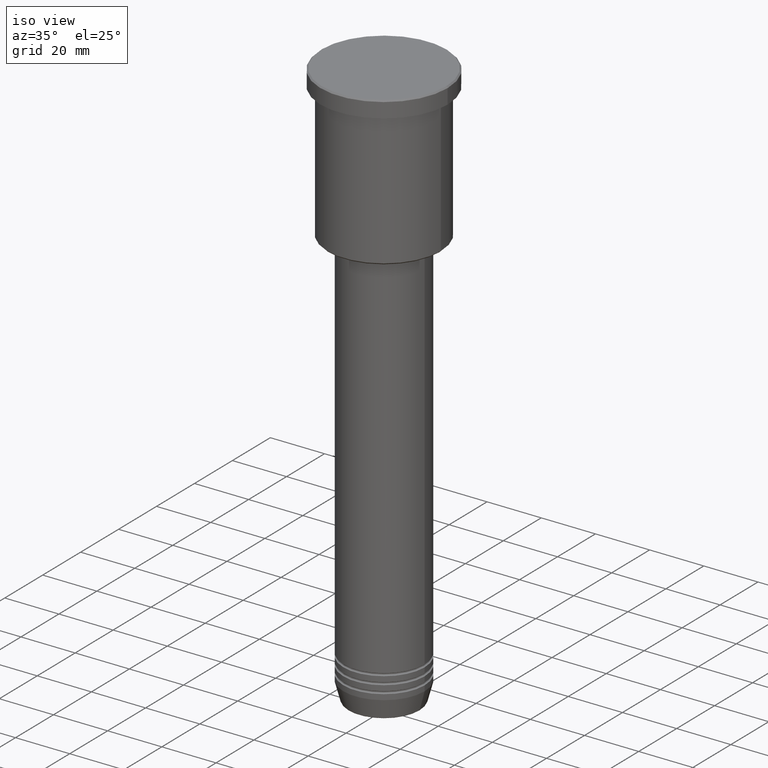
[diagram: clean part render]
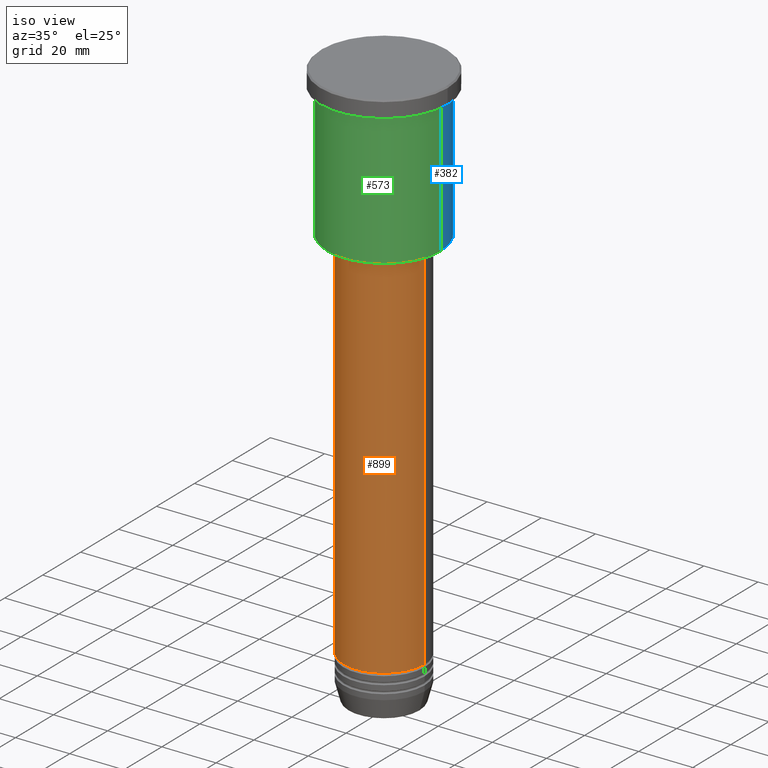
[diagram: same view with three faces highlighted in distinct colors, each labeled with its STEP entity id]
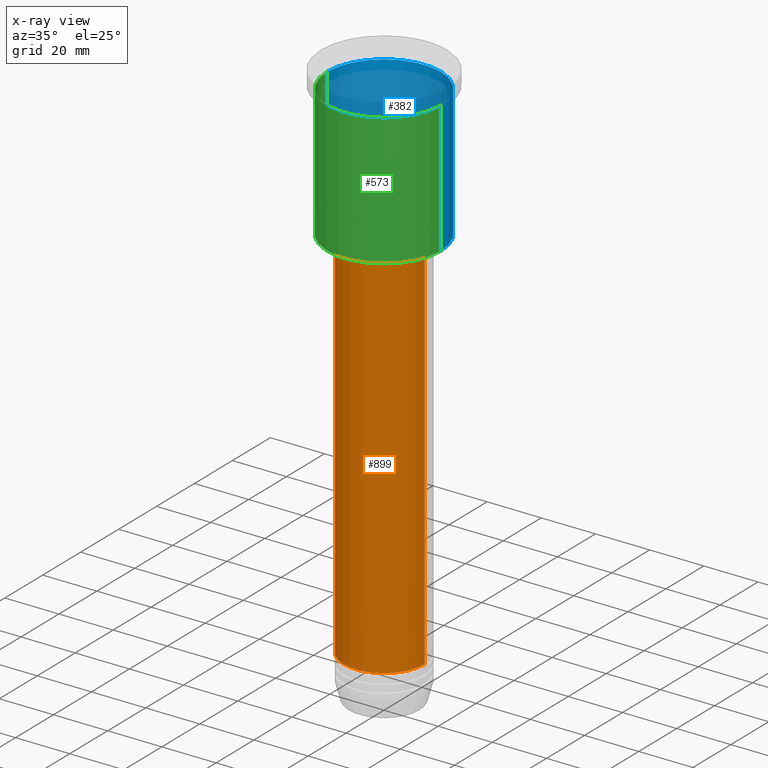
[diagram: x-ray of the same camera — body ghosted, the three highlighted faces saturated]
A machine part, iso view with three faces highlighted in distinct colors.
The next image is the same camera in x-ray (body ghosted, the three faces saturated) — at least one of them is partly hidden behind the body in this view.
Their STEP definitions:

[orange] entity #899 — the highlighted cylindrical surface (partial cylindrical patch) has radius 15 mm, axis along (-0, -0, 1).
#42 = VERTEX_POINT ( 'NONE', #101 ) ;
#66 = CARTESIAN_POINT ( 'NONE',  ( 0.000000000000000000, 0.000000000000000000, 0.000000000000000000 ) ) ;
#81 = CARTESIAN_POINT ( 'NONE',  ( 0.000000000000000000, 0.000000000000000000, -57.00000000000000000 ) ) ;
#101 = CARTESIAN_POINT ( 'NONE',  ( -15.00000000000000000, 1.836970198721029589E-15, -194.9999999999999716 ) ) ;
#151 = LINE ( 'NONE', #628, #1124 ) ;
#162 = EDGE_CURVE ( 'NONE', #42, #779, #227, .T. ) ;
#227 = CIRCLE ( 'NONE', #748, 15.00000000000000000 ) ;
#233 = ORIENTED_EDGE ( 'NONE', *, *, #362, .T. ) ;
#318 = DIRECTION ( 'NONE',  ( -0.000000000000000000, -0.000000000000000000, 1.000000000000000000 ) ) ;
#362 = EDGE_CURVE ( 'NONE', #779, #506, #151, .T. ) ;
#363 = DIRECTION ( 'NONE',  ( 1.000000000000000000, 0.000000000000000000, 0.000000000000000000 ) ) ;
#416 = EDGE_CURVE ( 'NONE', #1158, #506, #916, .T. ) ;
#437 = DIRECTION ( 'NONE',  ( -0.000000000000000000, -0.000000000000000000, 1.000000000000000000 ) ) ;
#506 = VERTEX_POINT ( 'NONE', #1152 ) ;
#532 = FACE_OUTER_BOUND ( 'NONE', #659, .T. ) ;
#540 = AXIS2_PLACEMENT_3D ( 'NONE', #81, #1178, #363 ) ;
#624 = EDGE_CURVE ( 'NONE', #42, #1158, #665, .T. ) ;
#628 = CARTESIAN_POINT ( 'NONE',  ( 15.00000000000000000, 0.000000000000000000, 0.000000000000000000 ) ) ;
#659 = EDGE_LOOP ( 'NONE', ( #948, #668, #233, #907 ) ) ;
#665 = LINE ( 'NONE', #742, #989 ) ;
#668 = ORIENTED_EDGE ( 'NONE', *, *, #162, .T. ) ;
#742 = CARTESIAN_POINT ( 'NONE',  ( -15.00000000000000000, 1.836970198721029589E-15, 0.000000000000000000 ) ) ;
#748 = AXIS2_PLACEMENT_3D ( 'NONE', #1041, #318, #1139 ) ;
#779 = VERTEX_POINT ( 'NONE', #1141 ) ;
#799 = DIRECTION ( 'NONE',  ( -0.000000000000000000, -0.000000000000000000, 1.000000000000000000 ) ) ;
#863 = AXIS2_PLACEMENT_3D ( 'NONE', #66, #437, #1170 ) ;
#888 = CYLINDRICAL_SURFACE ( 'NONE', #863, 15.00000000000000000 ) ;
#899 = ADVANCED_FACE ( 'NONE', ( #532 ), #888, .T. ) ;
#907 = ORIENTED_EDGE ( 'NONE', *, *, #416, .F. ) ;
#916 = CIRCLE ( 'NONE', #540, 15.00000000000000000 ) ;
#948 = ORIENTED_EDGE ( 'NONE', *, *, #624, .F. ) ;
#979 = CARTESIAN_POINT ( 'NONE',  ( -15.00000000000000000, 1.836970198721029589E-15, -57.00000000000000000 ) ) ;
#989 = VECTOR ( 'NONE', #1102, 1000.000000000000000 ) ;
#1041 = CARTESIAN_POINT ( 'NONE',  ( 0.000000000000000000, 0.000000000000000000, -194.9999999999999716 ) ) ;
#1102 = DIRECTION ( 'NONE',  ( -0.000000000000000000, -0.000000000000000000, 1.000000000000000000 ) ) ;
#1124 = VECTOR ( 'NONE', #799, 1000.000000000000000 ) ;
#1139 = DIRECTION ( 'NONE',  ( 1.000000000000000000, 0.000000000000000000, 0.000000000000000000 ) ) ;
#1141 = CARTESIAN_POINT ( 'NONE',  ( 15.00000000000000000, 0.000000000000000000, -194.9999999999999716 ) ) ;
#1152 = CARTESIAN_POINT ( 'NONE',  ( 15.00000000000000000, 0.000000000000000000, -57.00000000000000000 ) ) ;
#1158 = VERTEX_POINT ( 'NONE', #979 ) ;
#1170 = DIRECTION ( 'NONE',  ( 1.000000000000000000, 0.000000000000000000, 0.000000000000000000 ) ) ;
#1178 = DIRECTION ( 'NONE',  ( -0.000000000000000000, -0.000000000000000000, 1.000000000000000000 ) ) ;

[blue] entity #382 — the highlighted cylindrical surface (partial cylindrical patch) has radius 21 mm, axis along (-0, -0, 1).
#24 = AXIS2_PLACEMENT_3D ( 'NONE', #605, #963, #48 ) ;
#48 = DIRECTION ( 'NONE',  ( -1.000000000000000000, 0.000000000000000000, 0.000000000000000000 ) ) ;
#87 = VERTEX_POINT ( 'NONE', #300 ) ;
#106 = EDGE_CURVE ( 'NONE', #87, #458, #1087, .T. ) ;
#107 = CARTESIAN_POINT ( 'NONE',  ( 0.000000000000000000, 0.000000000000000000, -6.999999999999994671 ) ) ;
#124 = DIRECTION ( 'NONE',  ( -0.000000000000000000, -0.000000000000000000, 1.000000000000000000 ) ) ;
#152 = VECTOR ( 'NONE', #684, 1000.000000000000000 ) ;
#191 = AXIS2_PLACEMENT_3D ( 'NONE', #107, #1181, #392 ) ;
#215 = VERTEX_POINT ( 'NONE', #681 ) ;
#300 = CARTESIAN_POINT ( 'NONE',  ( 21.00000000000000000, 0.000000000000000000, -6.999999999999994671 ) ) ;
#320 = LINE ( 'NONE', #593, #152 ) ;
#323 = CARTESIAN_POINT ( 'NONE',  ( -21.00000000000000000, 2.571758278209441661E-15, -6.999999999999994671 ) ) ;
#382 = ADVANCED_FACE ( 'NONE', ( #885 ), #436, .T. ) ;
#392 = DIRECTION ( 'NONE',  ( 1.000000000000000000, 0.000000000000000000, 0.000000000000000000 ) ) ;
#435 = EDGE_CURVE ( 'NONE', #215, #87, #320, .T. ) ;
#436 = CYLINDRICAL_SURFACE ( 'NONE', #523, 21.00000000000000000 ) ;
#458 = VERTEX_POINT ( 'NONE', #323 ) ;
#523 = AXIS2_PLACEMENT_3D ( 'NONE', #1059, #1070, #809 ) ;
#571 = ORIENTED_EDGE ( 'NONE', *, *, #435, .F. ) ;
#592 = LINE ( 'NONE', #941, #696 ) ;
#593 = CARTESIAN_POINT ( 'NONE',  ( 21.00000000000000000, 0.000000000000000000, 0.000000000000000000 ) ) ;
#605 = CARTESIAN_POINT ( 'NONE',  ( 0.000000000000000000, 0.000000000000000000, -55.49999999999999289 ) ) ;
#681 = CARTESIAN_POINT ( 'NONE',  ( 21.00000000000000000, 0.000000000000000000, -55.49999999999999289 ) ) ;
#683 = CARTESIAN_POINT ( 'NONE',  ( -21.00000000000000000, 2.571758278209441661E-15, -55.49999999999999289 ) ) ;
#684 = DIRECTION ( 'NONE',  ( -0.000000000000000000, -0.000000000000000000, 1.000000000000000000 ) ) ;
#696 = VECTOR ( 'NONE', #124, 1000.000000000000000 ) ;
#715 = EDGE_LOOP ( 'NONE', ( #913, #984, #980, #571 ) ) ;
#722 = EDGE_CURVE ( 'NONE', #786, #458, #592, .T. ) ;
#786 = VERTEX_POINT ( 'NONE', #683 ) ;
#809 = DIRECTION ( 'NONE',  ( 1.000000000000000000, 0.000000000000000000, 0.000000000000000000 ) ) ;
#885 = FACE_OUTER_BOUND ( 'NONE', #715, .T. ) ;
#913 = ORIENTED_EDGE ( 'NONE', *, *, #925, .T. ) ;
#925 = EDGE_CURVE ( 'NONE', #215, #786, #1052, .T. ) ;
#941 = CARTESIAN_POINT ( 'NONE',  ( -21.00000000000000000, 2.571758278209441661E-15, 0.000000000000000000 ) ) ;
#963 = DIRECTION ( 'NONE',  ( -0.000000000000000000, -0.000000000000000000, 1.000000000000000000 ) ) ;
#980 = ORIENTED_EDGE ( 'NONE', *, *, #106, .F. ) ;
#984 = ORIENTED_EDGE ( 'NONE', *, *, #722, .T. ) ;
#1052 = CIRCLE ( 'NONE', #24, 21.00000000000000000 ) ;
#1059 = CARTESIAN_POINT ( 'NONE',  ( 0.000000000000000000, 0.000000000000000000, 0.000000000000000000 ) ) ;
#1070 = DIRECTION ( 'NONE',  ( -0.000000000000000000, -0.000000000000000000, 1.000000000000000000 ) ) ;
#1087 = CIRCLE ( 'NONE', #191, 21.00000000000000000 ) ;
#1181 = DIRECTION ( 'NONE',  ( -0.000000000000000000, -0.000000000000000000, 1.000000000000000000 ) ) ;

[green] entity #573 — the highlighted cylindrical surface (partial cylindrical patch) has radius 21 mm, axis along (-0, -0, 1).
#87 = VERTEX_POINT ( 'NONE', #300 ) ;
#124 = DIRECTION ( 'NONE',  ( -0.000000000000000000, -0.000000000000000000, 1.000000000000000000 ) ) ;
#132 = AXIS2_PLACEMENT_3D ( 'NONE', #582, #240, #1136 ) ;
#152 = VECTOR ( 'NONE', #684, 1000.000000000000000 ) ;
#167 = EDGE_LOOP ( 'NONE', ( #1115, #982, #447, #768 ) ) ;
#185 = DIRECTION ( 'NONE',  ( 1.000000000000000000, 0.000000000000000000, 0.000000000000000000 ) ) ;
#215 = VERTEX_POINT ( 'NONE', #681 ) ;
#240 = DIRECTION ( 'NONE',  ( -0.000000000000000000, -0.000000000000000000, 1.000000000000000000 ) ) ;
#260 = DIRECTION ( 'NONE',  ( -1.000000000000000000, 0.000000000000000000, 0.000000000000000000 ) ) ;
#300 = CARTESIAN_POINT ( 'NONE',  ( 21.00000000000000000, 0.000000000000000000, -6.999999999999994671 ) ) ;
#310 = AXIS2_PLACEMENT_3D ( 'NONE', #1004, #566, #185 ) ;
#320 = LINE ( 'NONE', #593, #152 ) ;
#323 = CARTESIAN_POINT ( 'NONE',  ( -21.00000000000000000, 2.571758278209441661E-15, -6.999999999999994671 ) ) ;
#351 = CARTESIAN_POINT ( 'NONE',  ( 0.000000000000000000, 0.000000000000000000, -55.49999999999999289 ) ) ;
#435 = EDGE_CURVE ( 'NONE', #215, #87, #320, .T. ) ;
#447 = ORIENTED_EDGE ( 'NONE', *, *, #435, .T. ) ;
#451 = EDGE_CURVE ( 'NONE', #458, #87, #499, .T. ) ;
#458 = VERTEX_POINT ( 'NONE', #323 ) ;
#499 = CIRCLE ( 'NONE', #132, 21.00000000000000000 ) ;
#566 = DIRECTION ( 'NONE',  ( -0.000000000000000000, -0.000000000000000000, 1.000000000000000000 ) ) ;
#573 = ADVANCED_FACE ( 'NONE', ( #747 ), #904, .T. ) ;
#582 = CARTESIAN_POINT ( 'NONE',  ( 0.000000000000000000, 0.000000000000000000, -6.999999999999994671 ) ) ;
#592 = LINE ( 'NONE', #941, #696 ) ;
#593 = CARTESIAN_POINT ( 'NONE',  ( 21.00000000000000000, 0.000000000000000000, 0.000000000000000000 ) ) ;
#641 = AXIS2_PLACEMENT_3D ( 'NONE', #351, #1072, #260 ) ;
#681 = CARTESIAN_POINT ( 'NONE',  ( 21.00000000000000000, 0.000000000000000000, -55.49999999999999289 ) ) ;
#683 = CARTESIAN_POINT ( 'NONE',  ( -21.00000000000000000, 2.571758278209441661E-15, -55.49999999999999289 ) ) ;
#684 = DIRECTION ( 'NONE',  ( -0.000000000000000000, -0.000000000000000000, 1.000000000000000000 ) ) ;
#696 = VECTOR ( 'NONE', #124, 1000.000000000000000 ) ;
#722 = EDGE_CURVE ( 'NONE', #786, #458, #592, .T. ) ;
#747 = FACE_OUTER_BOUND ( 'NONE', #167, .T. ) ;
#768 = ORIENTED_EDGE ( 'NONE', *, *, #451, .F. ) ;
#786 = VERTEX_POINT ( 'NONE', #683 ) ;
#904 = CYLINDRICAL_SURFACE ( 'NONE', #310, 21.00000000000000000 ) ;
#941 = CARTESIAN_POINT ( 'NONE',  ( -21.00000000000000000, 2.571758278209441661E-15, 0.000000000000000000 ) ) ;
#982 = ORIENTED_EDGE ( 'NONE', *, *, #1147, .T. ) ;
#1004 = CARTESIAN_POINT ( 'NONE',  ( 0.000000000000000000, 0.000000000000000000, 0.000000000000000000 ) ) ;
#1055 = CIRCLE ( 'NONE', #641, 21.00000000000000000 ) ;
#1072 = DIRECTION ( 'NONE',  ( -0.000000000000000000, -0.000000000000000000, 1.000000000000000000 ) ) ;
#1115 = ORIENTED_EDGE ( 'NONE', *, *, #722, .F. ) ;
#1136 = DIRECTION ( 'NONE',  ( 1.000000000000000000, 0.000000000000000000, 0.000000000000000000 ) ) ;
#1147 = EDGE_CURVE ( 'NONE', #786, #215, #1055, .T. ) ;